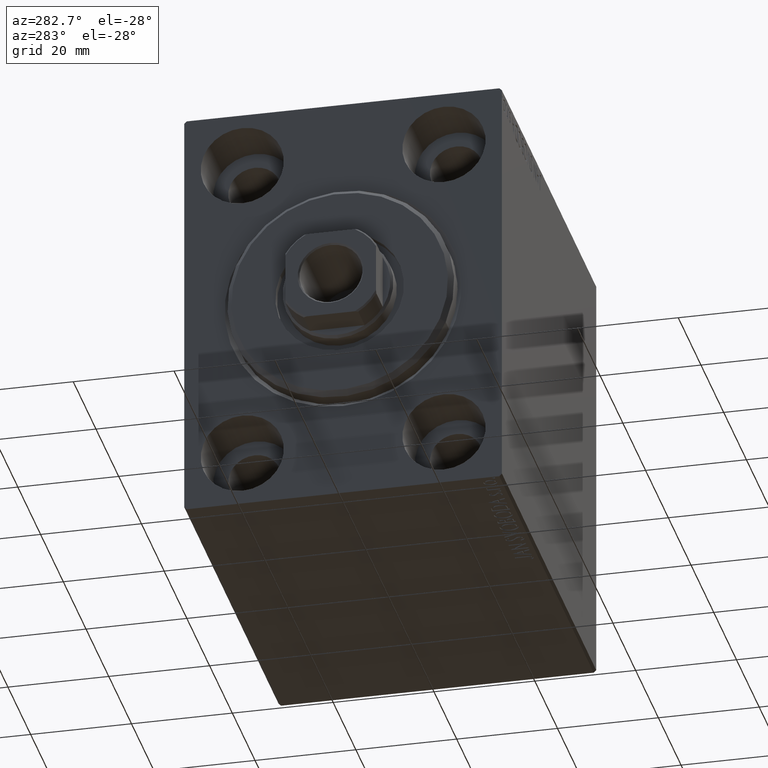
[diagram: clean part render]
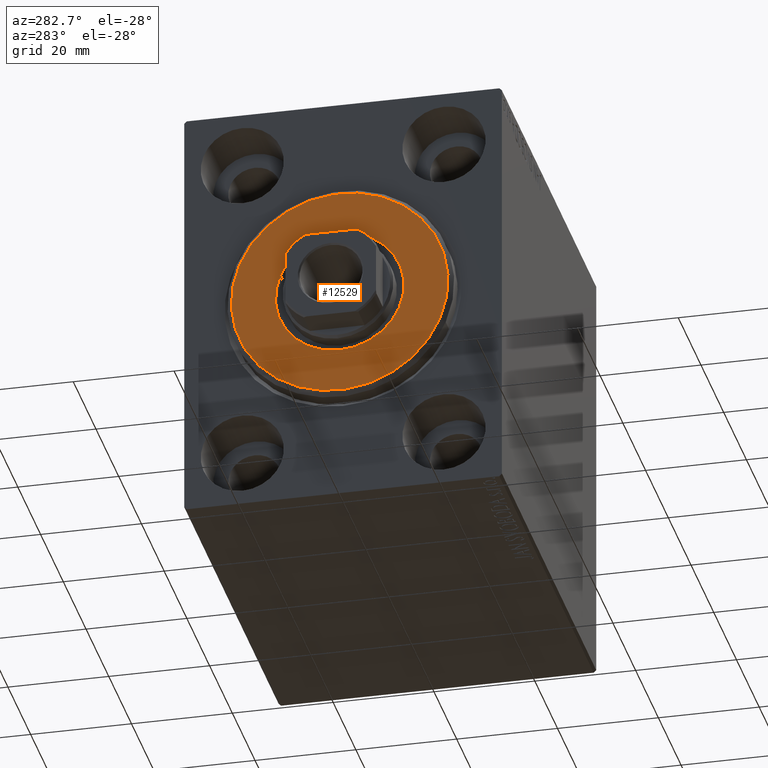
[diagram: same view with one face highlighted and labeled with its STEP entity id]
A machine part, auxiliary view. The second image highlights one B-rep face of the part: STEP entity #12529.
In plain terms, the highlighted planar face has unit normal (-1, 0, 0).
Its self-contained STEP definition (entity closure, byte-faithful):
#222 = AXIS2_PLACEMENT_3D ( 'NONE', #34192, #3885, #13193 ) ;
#478 = VERTEX_POINT ( 'NONE', #41333 ) ;
#2429 = DIRECTION ( 'NONE',  ( -1.000000000000000000, 0.000000000000000000, -0.000000000000000000 ) ) ;
#3073 = CIRCLE ( 'NONE', #222, 12.75000000000000000 ) ;
#3336 = DIRECTION ( 'NONE',  ( 1.000000000000000000, -0.000000000000000000, 0.000000000000000000 ) ) ;
#3885 = DIRECTION ( 'NONE',  ( -1.000000000000000000, 0.000000000000000000, -0.000000000000000000 ) ) ;
#5513 = VERTEX_POINT ( 'NONE', #8986 ) ;
#7195 = DIRECTION ( 'NONE',  ( 0.000000000000000000, 0.000000000000000000, -1.000000000000000000 ) ) ;
#7508 = AXIS2_PLACEMENT_3D ( 'NONE', #15406, #37994, #11428 ) ;
#8050 = ORIENTED_EDGE ( 'NONE', *, *, #23563, .T. ) ;
#8205 = CIRCLE ( 'NONE', #7508, 21.50000000000000355 ) ;
#8986 = CARTESIAN_POINT ( 'NONE',  ( 3.000000000000000000, 0.000000000000000000, 12.75000000000000000 ) ) ;
#10083 = CARTESIAN_POINT ( 'NONE',  ( 3.000000000000000000, 0.000000000000000000, 0.000000000000000000 ) ) ;
#11428 = DIRECTION ( 'NONE',  ( 0.000000000000000000, 0.000000000000000000, -1.000000000000000000 ) ) ;
#12529 = ADVANCED_FACE ( 'NONE', ( #21728, #17777 ), #37898, .T. ) ;
#13193 = DIRECTION ( 'NONE',  ( 0.000000000000000000, 0.000000000000000000, -1.000000000000000000 ) ) ;
#13497 = DIRECTION ( 'NONE',  ( 0.000000000000000000, 0.000000000000000000, -1.000000000000000000 ) ) ;
#14381 = EDGE_CURVE ( 'NONE', #5513, #41748, #3073, .T. ) ;
#14623 = CIRCLE ( 'NONE', #30835, 12.75000000000000000 ) ;
#15406 = CARTESIAN_POINT ( 'NONE',  ( 3.000000000000000000, 0.000000000000000000, 0.000000000000000000 ) ) ;
#16309 = ORIENTED_EDGE ( 'NONE', *, *, #14381, .T. ) ;
#17777 = FACE_BOUND ( 'NONE', #35326, .T. ) ;
#17998 = CARTESIAN_POINT ( 'NONE',  ( 3.000000000000000000, 0.000000000000000000, 0.000000000000000000 ) ) ;
#18884 = VERTEX_POINT ( 'NONE', #30758 ) ;
#21073 = DIRECTION ( 'NONE',  ( 0.000000000000000000, 0.000000000000000000, -1.000000000000000000 ) ) ;
#21728 = FACE_OUTER_BOUND ( 'NONE', #31258, .T. ) ;
#23563 = EDGE_CURVE ( 'NONE', #478, #18884, #8205, .T. ) ;
#25181 = EDGE_CURVE ( 'NONE', #41748, #5513, #14623, .T. ) ;
#30758 = CARTESIAN_POINT ( 'NONE',  ( 3.000000000000000000, 2.694222958124177598E-15, -21.50000000000000355 ) ) ;
#30835 = AXIS2_PLACEMENT_3D ( 'NONE', #10083, #2429, #7195 ) ;
#31258 = EDGE_LOOP ( 'NONE', ( #8050, #40404 ) ) ;
#33639 = CARTESIAN_POINT ( 'NONE',  ( 3.000000000000000000, 0.000000000000000000, 0.000000000000000000 ) ) ;
#34192 = CARTESIAN_POINT ( 'NONE',  ( 3.000000000000000000, 0.000000000000000000, 0.000000000000000000 ) ) ;
#35265 = ORIENTED_EDGE ( 'NONE', *, *, #25181, .T. ) ;
#35326 = EDGE_LOOP ( 'NONE', ( #16309, #35265 ) ) ;
#35339 = CIRCLE ( 'NONE', #36040, 21.50000000000000355 ) ;
#36040 = AXIS2_PLACEMENT_3D ( 'NONE', #33639, #3336, #13497 ) ;
#37898 = PLANE ( 'NONE',  #43262 ) ;
#37994 = DIRECTION ( 'NONE',  ( 1.000000000000000000, -0.000000000000000000, 0.000000000000000000 ) ) ;
#40404 = ORIENTED_EDGE ( 'NONE', *, *, #40558, .T. ) ;
#40558 = EDGE_CURVE ( 'NONE', #18884, #478, #35339, .T. ) ;
#41146 = CARTESIAN_POINT ( 'NONE',  ( 3.000000000000000000, 1.561424668912874914E-15, -12.75000000000000000 ) ) ;
#41333 = CARTESIAN_POINT ( 'NONE',  ( 3.000000000000000000, 0.000000000000000000, 21.50000000000000355 ) ) ;
#41635 = DIRECTION ( 'NONE',  ( 1.000000000000000000, -0.000000000000000000, 0.000000000000000000 ) ) ;
#41748 = VERTEX_POINT ( 'NONE', #41146 ) ;
#43262 = AXIS2_PLACEMENT_3D ( 'NONE', #17998, #41635, #21073 ) ;